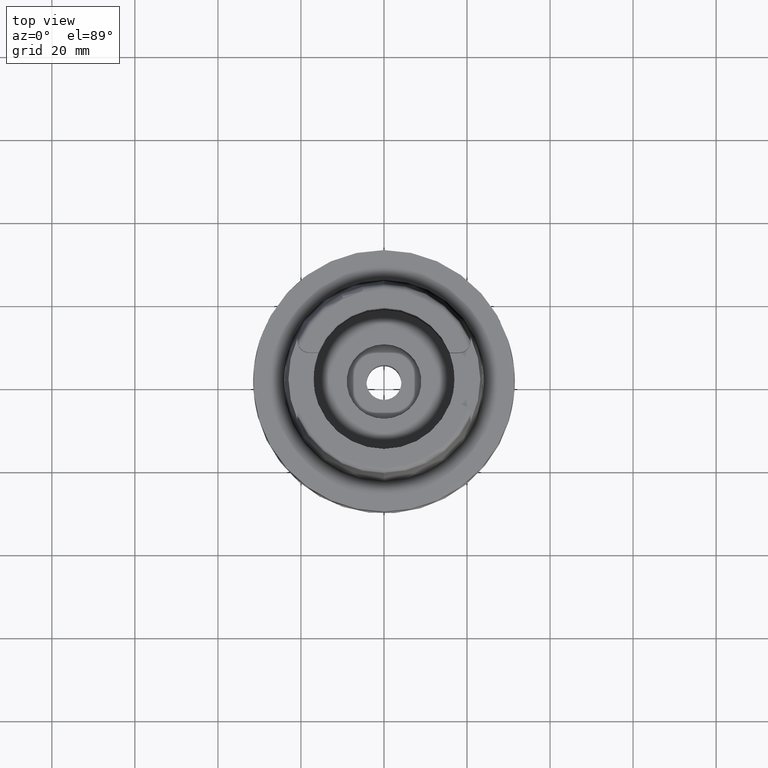
[diagram: clean part render]
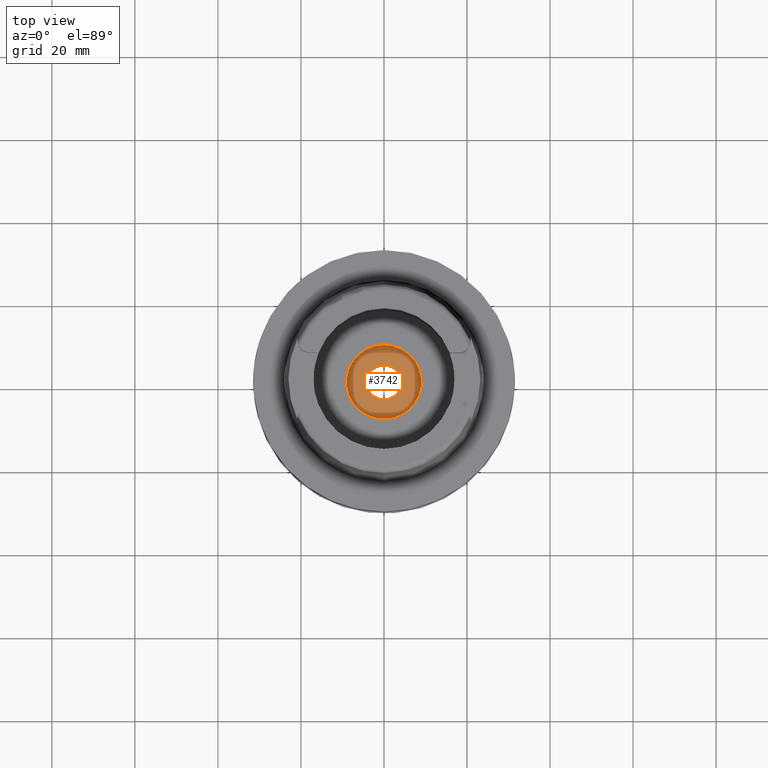
[diagram: same view with one face highlighted and labeled with its STEP entity id]
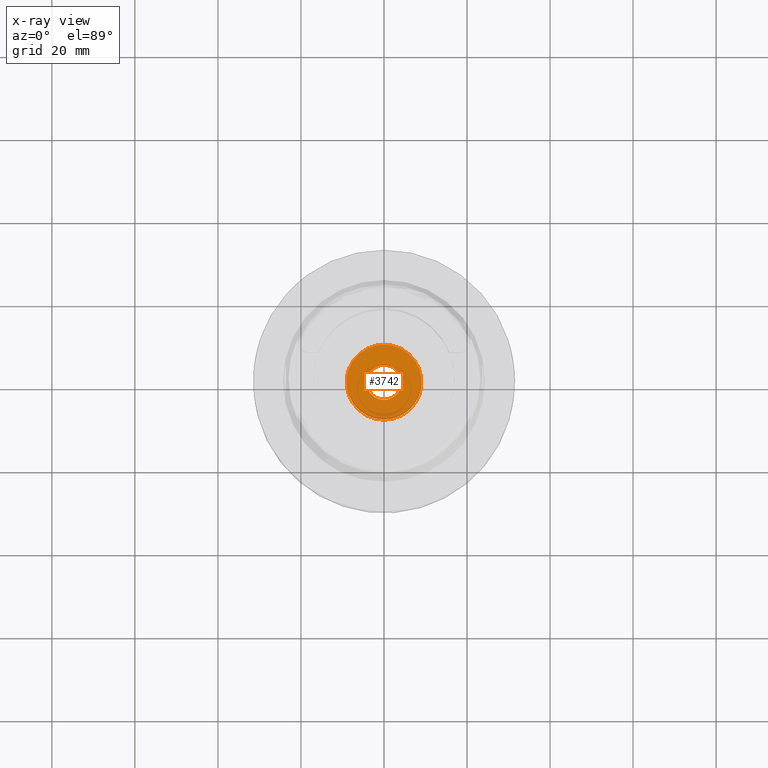
[diagram: x-ray of the same camera — body ghosted, the highlighted face saturated]
A machine part, top view. The second image highlights one B-rep face of the part: STEP entity #3742.
The next image is the same camera in x-ray: the body ghosted, the highlighted face saturated — about 0% of this face is hidden behind the body in this view.
In plain terms, the highlighted planar face has unit normal (0, 0, 1).
Its self-contained STEP definition (entity closure, byte-faithful):
#417 = CARTESIAN_POINT ( 'NONE',  ( 0.0000000000000000000, 4.200000000000000178, -21.94999999999999929 ) ) ;
#544 = CIRCLE ( 'NONE', #4050, 9.000000000000000000 ) ;
#670 = EDGE_LOOP ( 'NONE', ( #2594, #1875 ) ) ;
#757 = CARTESIAN_POINT ( 'NONE',  ( 0.0000000000000000000, -9.000000000000000000, -21.94999999999999929 ) ) ;
#985 = VERTEX_POINT ( 'NONE', #757 ) ;
#1094 = CARTESIAN_POINT ( 'NONE',  ( 0.0000000000000000000, 0.0000000000000000000, -21.94999999999999929 ) ) ;
#1117 = EDGE_LOOP ( 'NONE', ( #2811, #5446 ) ) ;
#1472 = EDGE_CURVE ( 'NONE', #4526, #985, #544, .T. ) ;
#1589 = FACE_OUTER_BOUND ( 'NONE', #1117, .T. ) ;
#1593 = DIRECTION ( 'NONE',  ( 0.0000000000000000000, -1.000000000000000000, 0.0000000000000000000 ) ) ;
#1641 = CIRCLE ( 'NONE', #5368, 4.200000000000000178 ) ;
#1651 = AXIS2_PLACEMENT_3D ( 'NONE', #2893, #2501, #5441 ) ;
#1661 = AXIS2_PLACEMENT_3D ( 'NONE', #4632, #2869, #1593 ) ;
#1773 = DIRECTION ( 'NONE',  ( 0.0000000000000000000, 1.000000000000000000, 0.0000000000000000000 ) ) ;
#1859 = CARTESIAN_POINT ( 'NONE',  ( 0.0000000000000000000, 0.0000000000000000000, -21.94999999999999929 ) ) ;
#1875 = ORIENTED_EDGE ( 'NONE', *, *, #4071, .F. ) ;
#1927 = AXIS2_PLACEMENT_3D ( 'NONE', #2758, #3607, #5312 ) ;
#2237 = VERTEX_POINT ( 'NONE', #5165 ) ;
#2277 = CIRCLE ( 'NONE', #1661, 9.000000000000000000 ) ;
#2445 = CIRCLE ( 'NONE', #1927, 4.200000000000000178 ) ;
#2501 = DIRECTION ( 'NONE',  ( 0.0000000000000000000, 0.0000000000000000000, 1.000000000000000000 ) ) ;
#2594 = ORIENTED_EDGE ( 'NONE', *, *, #2756, .F. ) ;
#2756 = EDGE_CURVE ( 'NONE', #4517, #2237, #1641, .T. ) ;
#2758 = CARTESIAN_POINT ( 'NONE',  ( 0.0000000000000000000, 0.0000000000000000000, -21.94999999999999929 ) ) ;
#2811 = ORIENTED_EDGE ( 'NONE', *, *, #1472, .F. ) ;
#2869 = DIRECTION ( 'NONE',  ( 0.0000000000000000000, 0.0000000000000000000, -1.000000000000000000 ) ) ;
#2893 = CARTESIAN_POINT ( 'NONE',  ( 0.0000000000000000000, 0.0000000000000000000, -21.94999999999999929 ) ) ;
#3607 = DIRECTION ( 'NONE',  ( 0.0000000000000000000, 0.0000000000000000000, 1.000000000000000000 ) ) ;
#3713 = PLANE ( 'NONE',  #1651 ) ;
#3742 = ADVANCED_FACE ( 'NONE', ( #1589, #5467 ), #3713, .T. ) ;
#3760 = CARTESIAN_POINT ( 'NONE',  ( 0.0000000000000000000, 9.000000000000000000, -21.94999999999999929 ) ) ;
#3895 = DIRECTION ( 'NONE',  ( 0.0000000000000000000, 1.000000000000000000, 0.0000000000000000000 ) ) ;
#3972 = DIRECTION ( 'NONE',  ( 0.0000000000000000000, 0.0000000000000000000, 1.000000000000000000 ) ) ;
#4050 = AXIS2_PLACEMENT_3D ( 'NONE', #1859, #5237, #1773 ) ;
#4071 = EDGE_CURVE ( 'NONE', #2237, #4517, #2445, .T. ) ;
#4397 = EDGE_CURVE ( 'NONE', #985, #4526, #2277, .T. ) ;
#4517 = VERTEX_POINT ( 'NONE', #417 ) ;
#4526 = VERTEX_POINT ( 'NONE', #3760 ) ;
#4632 = CARTESIAN_POINT ( 'NONE',  ( 0.0000000000000000000, 0.0000000000000000000, -21.94999999999999929 ) ) ;
#5165 = CARTESIAN_POINT ( 'NONE',  ( 0.0000000000000000000, -4.200000000000000178, -21.94999999999999929 ) ) ;
#5237 = DIRECTION ( 'NONE',  ( 0.0000000000000000000, 0.0000000000000000000, -1.000000000000000000 ) ) ;
#5312 = DIRECTION ( 'NONE',  ( 0.0000000000000000000, -1.000000000000000000, 0.0000000000000000000 ) ) ;
#5368 = AXIS2_PLACEMENT_3D ( 'NONE', #1094, #3972, #3895 ) ;
#5441 = DIRECTION ( 'NONE',  ( 1.000000000000000000, 0.0000000000000000000, 0.0000000000000000000 ) ) ;
#5446 = ORIENTED_EDGE ( 'NONE', *, *, #4397, .F. ) ;
#5467 = FACE_BOUND ( 'NONE', #670, .T. ) ;